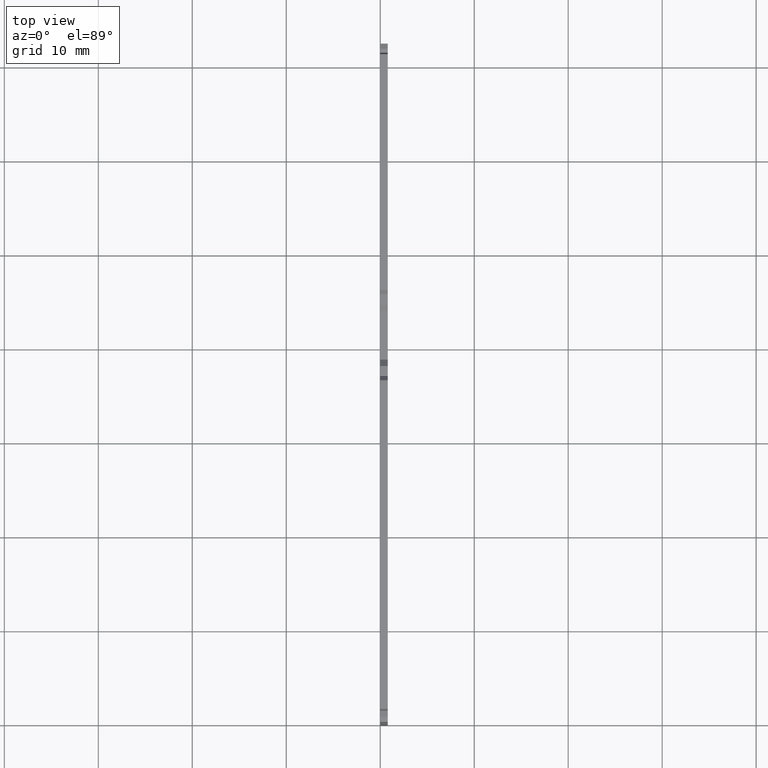
[diagram: clean part render]
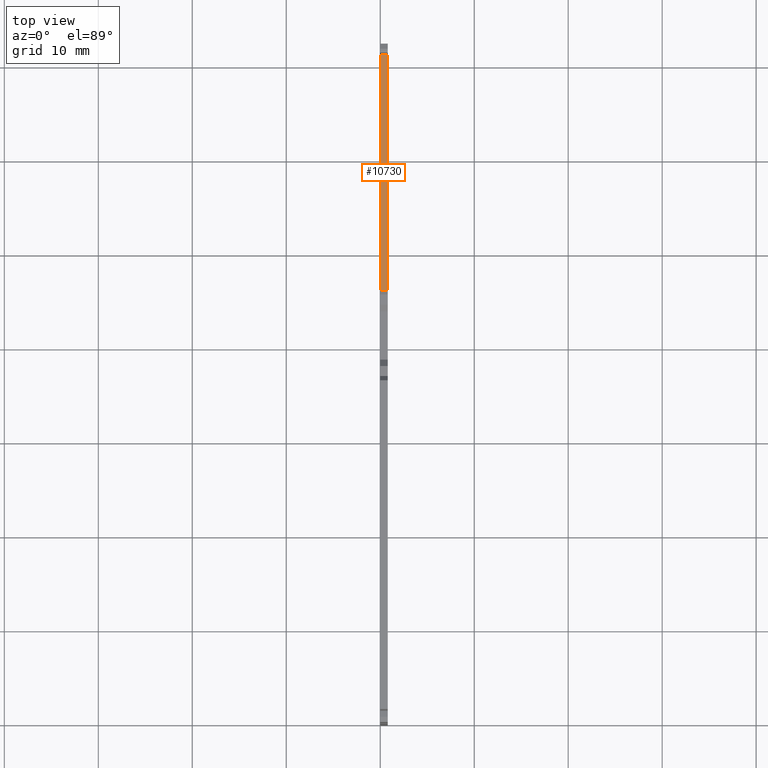
[diagram: same view with one face highlighted and labeled with its STEP entity id]
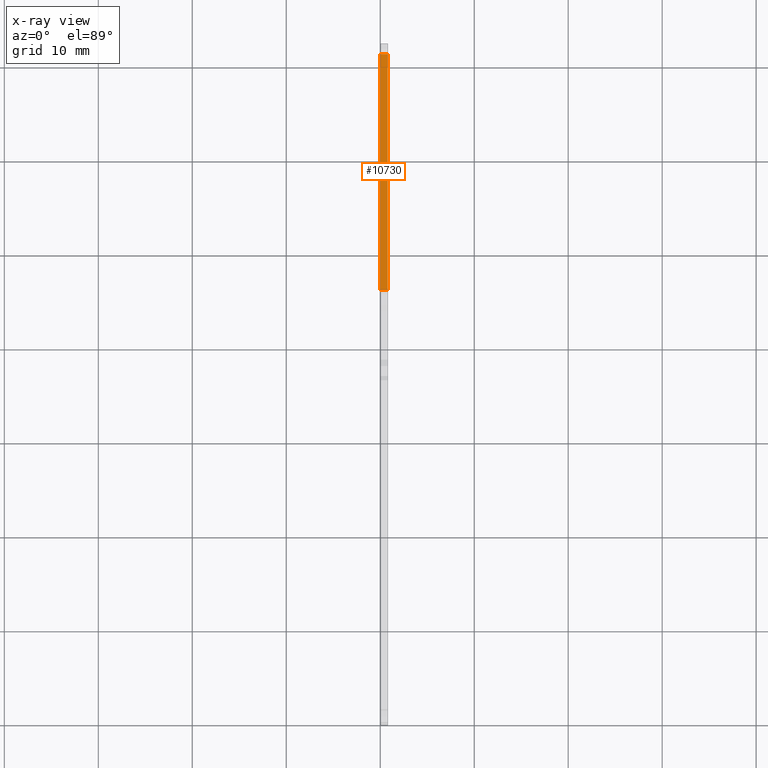
[diagram: x-ray of the same camera — body ghosted, the highlighted face saturated]
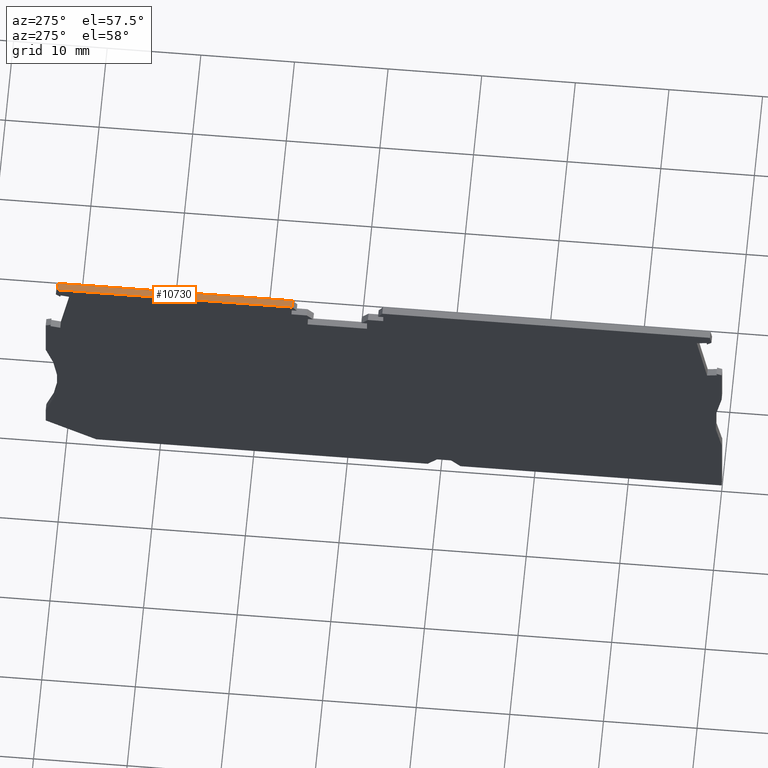
[diagram: same view with one face highlighted and labeled with its STEP entity id]
A machine part, top view. The second image highlights one B-rep face of the part: STEP entity #10730.
The next image is the same camera in x-ray: the body ghosted, the highlighted face saturated — about 0% of this face is hidden behind the body in this view.
A second angle (auxiliary view) of the same face is appended — the face is thin or edge-on in the first view.
In plain terms, the highlighted planar face has unit normal (-0, -0, 1).
Its self-contained STEP definition (entity closure, byte-faithful):
#3050=CARTESIAN_POINT('',(70.7794705422053,-9.15000000000795,
1.34999999999997));
#3060=VERTEX_POINT('',#3050);
#3090=CARTESIAN_POINT('',(59.720285,-9.15000000000795,1.3499999999673));
#3100=DIRECTION('',(-1.,0.,0.));
#3110=VECTOR('',#3100,1.);
#3120=LINE('',#3090,#3110);
#3130=CARTESIAN_POINT('',(45.6782490953308,-9.15000000000795,
1.34999999999997));
#3140=VERTEX_POINT('',#3130);
#3150=EDGE_CURVE('',#3060,#3140,#3120,.T.);
#5440=CARTESIAN_POINT('',(45.6782490953308,-9.15000000000795,
-2.8421709430404E-14));
#5450=DIRECTION('',(0.,0.,1.));
#5460=VECTOR('',#5450,1.);
#5470=LINE('',#5440,#5460);
#5480=CARTESIAN_POINT('',(45.6782490953308,-9.15000000000795,
2.14999999999998));
#5490=VERTEX_POINT('',#5480);
#5500=EDGE_CURVE('',#3140,#5490,#5470,.T.);
#10500=CARTESIAN_POINT('',(46.434405673364,-9.15000000000795,
-3.26849658449646E-11));
#10510=DIRECTION('',(-0.,1.,0.));
#10520=DIRECTION('',(1.,0.,0.));
#10530=AXIS2_PLACEMENT_3D('',#10500,#10510,#10520);
#10540=PLANE('',#10530);
#10550=CARTESIAN_POINT('',(47.920285,-9.15000000000795,2.14999999999998)
);
#10560=DIRECTION('',(1.,0.,0.));
#10570=VECTOR('',#10560,1.);
#10580=LINE('',#10550,#10570);
#10590=CARTESIAN_POINT('',(70.7794705422074,-9.15000000000794,
2.14999999999998));
#10600=VERTEX_POINT('',#10590);
#10610=EDGE_CURVE('',#5490,#10600,#10580,.T.);
#10620=ORIENTED_EDGE('',*,*,#10610,.T.);
#10630=ORIENTED_EDGE('',*,*,#5500,.T.);
#10640=ORIENTED_EDGE('',*,*,#3150,.T.);
#10650=CARTESIAN_POINT('',(70.7794705422017,-9.15000000000795,
-2.8421709430404E-14));
#10660=DIRECTION('',(2.6697591550811E-12,0.,1.));
#10670=VECTOR('',#10660,1.);
#10680=LINE('',#10650,#10670);
#10690=EDGE_CURVE('',#3060,#10600,#10680,.T.);
#10700=ORIENTED_EDGE('',*,*,#10690,.F.);
#10710=EDGE_LOOP('',(#10700,#10640,#10630,#10620));
#10720=FACE_OUTER_BOUND('',#10710,.T.);
#10730=ADVANCED_FACE('',(#10720),#10540,.T.);